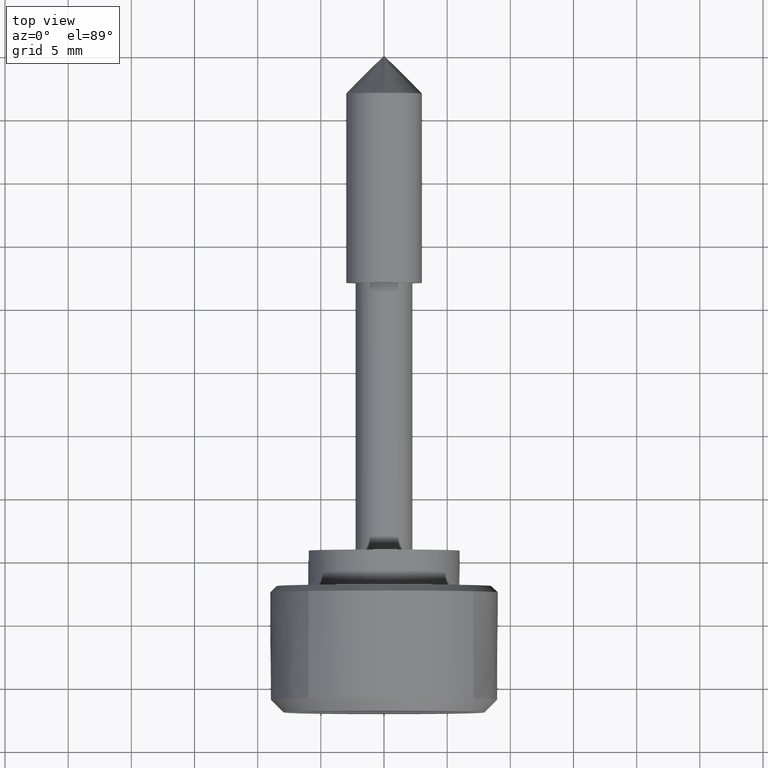
[diagram: clean part render]
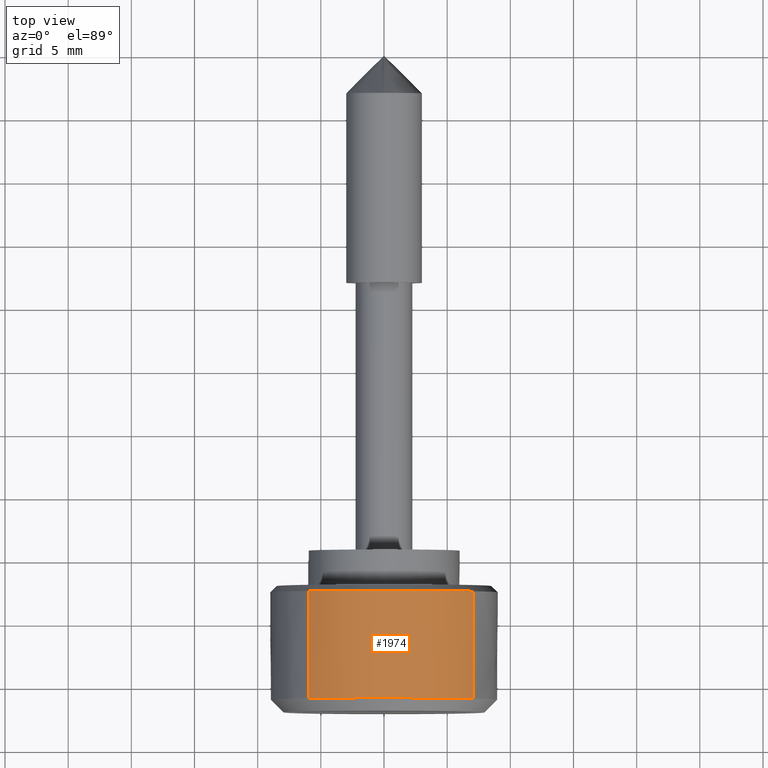
[diagram: same view with one face highlighted and labeled with its STEP entity id]
A machine part, top view. The second image highlights one B-rep face of the part: STEP entity #1974.
In plain terms, the highlighted face is a freeform B-spline surface patch.
Its self-contained STEP definition (entity closure, byte-faithful):
#1489=CARTESIAN_POINT('',(-2.499999999999944,5.963579269917588,6.740602516942143));
#1490=VERTEX_POINT('',#1489);
#1506=CARTESIAN_POINT('',(-2.499999999999945,0.0,9.0));
#1507=VERTEX_POINT('',#1506);
#1508=CARTESIAN_POINT('',(-2.499999999999945,0.0,9.0));
#1509=CARTESIAN_POINT('',(-2.499999999999945,3.409794089615664,9.000000000000002));
#1510=CARTESIAN_POINT('',(-2.499999999999944,5.963579269917588,6.740602516942142));
#1518=(BOUNDED_CURVE()B_SPLINE_CURVE(2,(#1508,#1509,#1510),.UNSPECIFIED.,.F.,.U.)B_SPLINE_CURVE_WITH_KNOTS((3,3),(0.500000000000000,0.615779861978577),.UNSPECIFIED.)CURVE()GEOMETRIC_REPRESENTATION_ITEM()RATIONAL_B_SPLINE_CURVE((1.0,0.864355454205269,0.854350162732624))REPRESENTATION_ITEM(''));
#1519=EDGE_CURVE('',#1507,#1490,#1518,.T.);
#1521=CARTESIAN_POINT('',(-2.499999999999944,-7.070639771251634,5.568307931965846));
#1522=VERTEX_POINT('',#1521);
#1523=CARTESIAN_POINT('',(-2.499999999999944,-7.070639771251636,5.568307931965846));
#1524=CARTESIAN_POINT('',(-2.499999999999945,-4.368095908588074,9.0));
#1525=CARTESIAN_POINT('',(-2.499999999999945,0.0,9.0));
#1533=(BOUNDED_CURVE()B_SPLINE_CURVE(2,(#1523,#1524,#1525),.UNSPECIFIED.,.F.,.U.)B_SPLINE_CURVE_WITH_KNOTS((3,3),(0.357127509740917,0.500000000000000),.UNSPECIFIED.)CURVE()GEOMETRIC_REPRESENTATION_ITEM()RATIONAL_B_SPLINE_CURVE((0.856547236429575,0.832614465792494,1.0))REPRESENTATION_ITEM(''));
#1534=EDGE_CURVE('',#1522,#1507,#1533,.T.);
#1811=CARTESIAN_POINT('',(-10.999899999999990,-7.070641188374589,5.568306132501194));
#1812=VERTEX_POINT('',#1811);
#1903=CARTESIAN_POINT('',(-10.999899999999981,5.963580234905301,6.740601663193482));
#1904=VERTEX_POINT('',#1903);
#1918=CARTESIAN_POINT('',(-10.999899999999981,5.963580234905301,6.740601663193482));
#1919=CARTESIAN_POINT('',(-2.499999999999944,5.963579269917588,6.740602516942143));
#1920=QUASI_UNIFORM_CURVE('',1,(#1918,#1919),.UNSPECIFIED.,.F.,.U.);
#1921=EDGE_CURVE('',#1904,#1490,#1920,.T.);
#1927=CARTESIAN_POINT('',(-10.999899999999990,-7.070641188374589,5.568306132501194));
#1928=CARTESIAN_POINT('',(-2.499999999999944,-7.070639771251634,5.568307931965846));
#1929=QUASI_UNIFORM_CURVE('',1,(#1927,#1928),.UNSPECIFIED.,.F.,.U.);
#1930=EDGE_CURVE('',#1812,#1522,#1929,.T.);
#1935=CARTESIAN_POINT('',(-11.212397500000000,5.963580433941632,6.740601487101019));
#1936=CARTESIAN_POINT('',(-11.212397500000003,-0.777021053159387,12.704181921042650));
#1937=CARTESIAN_POINT('',(-11.212397500000000,-6.740601487101019,5.963580433941632));
#1938=CARTESIAN_POINT('',(-11.212397500000007,-6.911276596992985,5.770667315339068));
#1939=CARTESIAN_POINT('',(-11.212397500000002,-7.070639198512934,5.568308659229686));
#1940=CARTESIAN_POINT('',(-2.282190062499943,5.963580433941632,6.740601487101019));
#1941=CARTESIAN_POINT('',(-2.282190062499943,-0.777021053159387,12.704181921042650));
#1942=CARTESIAN_POINT('',(-2.282190062499943,-6.740601487101019,5.963580433941632));
#1943=CARTESIAN_POINT('',(-2.282190062499943,-6.911276596992985,5.770667315339068));
#1944=CARTESIAN_POINT('',(-2.282190062499944,-7.070639198512934,5.568308659229686));
#1952=(BOUNDED_SURFACE()B_SPLINE_SURFACE(2,1,((#1935,#1940),(#1936,#1941),(#1937,#1942),(#1938,#1943),(#1939,#1944)),.UNSPECIFIED.,.F.,.F.,.U.)B_SPLINE_SURFACE_WITH_KNOTS((3,2,3),(2,2),(0.0,14.911688245431410,15.508155775248669),(0.0,8.930207437500062),.UNSPECIFIED.)GEOMETRIC_REPRESENTATION_ITEM()RATIONAL_B_SPLINE_SURFACE(((1.0,1.0),(0.707106781186548,0.707106781186548),(1.0,1.0),(0.988284271247462,0.988284271247462),(0.977505800795127,0.977505800795127)))REPRESENTATION_ITEM('')SURFACE());
#1953=CARTESIAN_POINT('',(-10.999899999999984,5.963580234905301,6.740601663193482));
#1954=CARTESIAN_POINT('',(-10.999899999999998,3.409794674360144,9.0));
#1955=CARTESIAN_POINT('',(-10.999900000000000,0.0,9.0));
#1956=CARTESIAN_POINT('',(-10.999900000000000,-4.368096751715387,9.0));
#1957=CARTESIAN_POINT('',(-10.999899999999991,-7.070641188374590,5.568306132501196));
#1965=(BOUNDED_CURVE()B_SPLINE_CURVE(2,(#1953,#1954,#1955,#1956,#1957),.UNSPECIFIED.,.F.,.U.)B_SPLINE_CURVE_WITH_KNOTS((3,2,3),(0.253570816850335,0.500000000000000,0.804778733171370),.UNSPECIFIED.)CURVE()GEOMETRIC_REPRESENTATION_ITEM()RATIONAL_B_SPLINE_CURVE((0.870836280645312,0.872655180750823,1.0,0.842502449626150,0.877012514774443))REPRESENTATION_ITEM(''));
#1966=EDGE_CURVE('',#1904,#1812,#1965,.T.);
#1967=ORIENTED_EDGE('',*,*,#1966,.T.);
#1968=ORIENTED_EDGE('',*,*,#1930,.T.);
#1969=ORIENTED_EDGE('',*,*,#1534,.T.);
#1970=ORIENTED_EDGE('',*,*,#1519,.T.);
#1971=ORIENTED_EDGE('',*,*,#1921,.F.);
#1972=EDGE_LOOP('',(#1967,#1968,#1969,#1970,#1971));
#1973=FACE_OUTER_BOUND('',#1972,.T.);
#1974=ADVANCED_FACE('',(#1973),#1952,.T.);